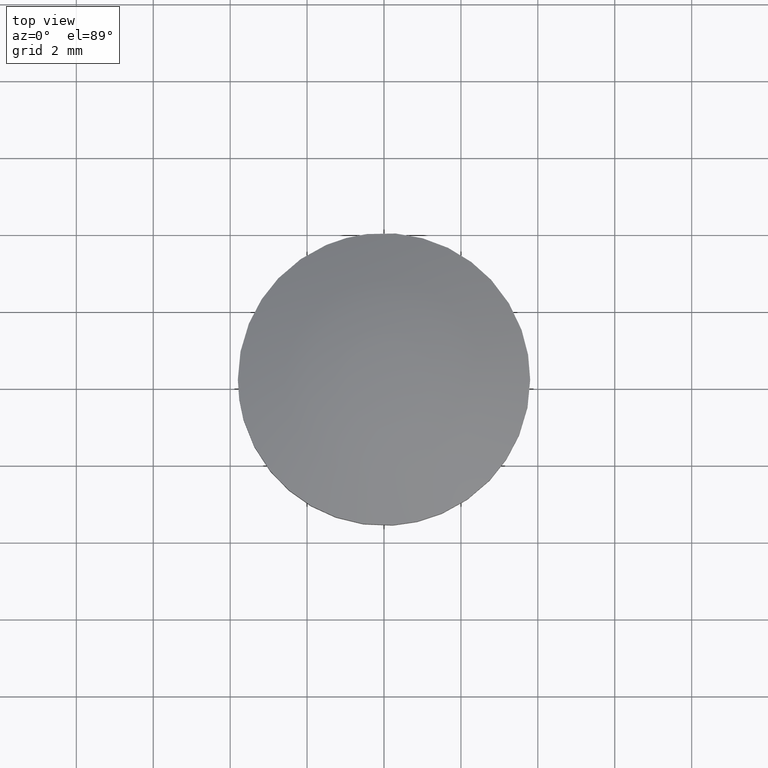
[diagram: clean part render]
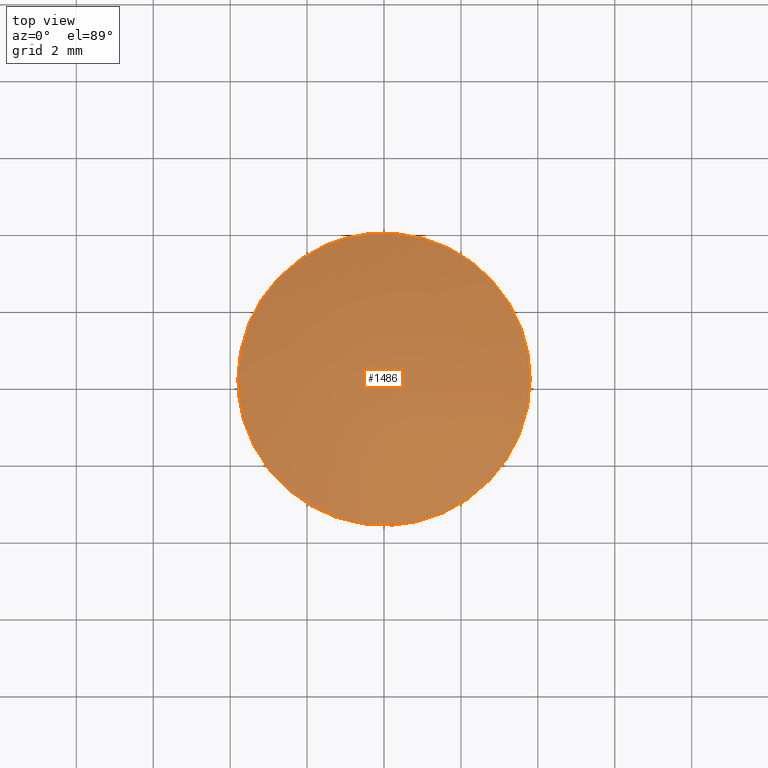
[diagram: same view with one face highlighted and labeled with its STEP entity id]
A machine part, top view. The second image highlights one B-rep face of the part: STEP entity #1486.
In plain terms, the highlighted face is a freeform B-spline surface patch.
Its self-contained STEP definition (entity closure, byte-faithful):
#66=CARTESIAN_POINT('',(-0.448526636085245,3.773436610930404,2.000000000000039));
#67=VERTEX_POINT('',#66);
#68=CARTESIAN_POINT('',(3.800000000000000,0.0,2.000000000000100));
#69=VERTEX_POINT('',#68);
#70=CARTESIAN_POINT('',(-0.448526636085245,3.773436610930405,2.000000000000039));
#71=CARTESIAN_POINT('',(-0.225049908606141,3.800000000000000,2.000000000000100));
#72=CARTESIAN_POINT('',(0.0,3.800000000000000,2.000000000000100));
#73=CARTESIAN_POINT('',(3.800000000000000,3.800000000000000,2.000000000000100));
#74=CARTESIAN_POINT('',(3.800000000000000,0.0,2.000000000000100));
#82=(BOUNDED_CURVE()B_SPLINE_CURVE(2,(#70,#71,#72,#73,#74),.UNSPECIFIED.,.F.,.U.)B_SPLINE_CURVE_WITH_KNOTS((3,2,3),(0.229562628284241,0.250000000000000,0.500000000000000),.UNSPECIFIED.)CURVE()GEOMETRIC_REPRESENTATION_ITEM()RATIONAL_B_SPLINE_CURVE((0.956027057540893,0.976056129656337,1.0,0.707106781186547,1.0))REPRESENTATION_ITEM(''));
#83=EDGE_CURVE('',#67,#69,#82,.T.);
#85=CARTESIAN_POINT('',(0.231979627528073,-3.792912528966175,2.000000000000092));
#86=VERTEX_POINT('',#85);
#87=CARTESIAN_POINT('',(3.800000000000000,0.0,2.000000000000100));
#88=CARTESIAN_POINT('',(3.800000000000001,-3.574687607962647,2.000000000000102));
#89=CARTESIAN_POINT('',(0.231979627528073,-3.792912528966174,2.000000000000092));
#97=(BOUNDED_CURVE()B_SPLINE_CURVE(2,(#87,#88,#89),.UNSPECIFIED.,.F.,.U.)B_SPLINE_CURVE_WITH_KNOTS((3,3),(0.500000000000000,0.739333181635997),.UNSPECIFIED.)CURVE()GEOMETRIC_REPRESENTATION_ITEM()RATIONAL_B_SPLINE_CURVE((1.0,0.719603736247073,0.976072511876820))REPRESENTATION_ITEM(''));
#98=EDGE_CURVE('',#69,#86,#97,.T.);
#165=CARTESIAN_POINT('',(-3.800000000000000,0.0,2.000000000000100));
#166=VERTEX_POINT('',#165);
#167=CARTESIAN_POINT('',(-3.800000000000000,0.0,2.000000000000100));
#168=CARTESIAN_POINT('',(-3.800000000000000,3.375066311165575,2.000000000000100));
#169=CARTESIAN_POINT('',(-0.448526636085245,3.773436610930405,2.000000000000039));
#177=(BOUNDED_CURVE()B_SPLINE_CURVE(2,(#167,#168,#169),.UNSPECIFIED.,.F.,.U.)B_SPLINE_CURVE_WITH_KNOTS((3,3),(0.0,0.229562628284241),.UNSPECIFIED.)CURVE()GEOMETRIC_REPRESENTATION_ITEM()RATIONAL_B_SPLINE_CURVE((1.0,0.731050651530211,0.956027057540893))REPRESENTATION_ITEM(''));
#178=EDGE_CURVE('',#166,#67,#177,.T.);
#212=CARTESIAN_POINT('',(0.231979627528073,-3.792912528966174,2.000000000000092));
#213=CARTESIAN_POINT('',(0.116098082421484,-3.799999999999999,2.000000000000100));
#214=CARTESIAN_POINT('',(0.0,-3.800000000000000,2.000000000000100));
#215=CARTESIAN_POINT('',(-3.800000000000000,-3.800000000000000,2.000000000000100));
#216=CARTESIAN_POINT('',(-3.800000000000000,0.0,2.000000000000100));
#224=(BOUNDED_CURVE()B_SPLINE_CURVE(2,(#212,#213,#214,#215,#216),.UNSPECIFIED.,.F.,.U.)B_SPLINE_CURVE_WITH_KNOTS((3,2,3),(0.739333181635997,0.750000000000000,1.0),.UNSPECIFIED.)CURVE()GEOMETRIC_REPRESENTATION_ITEM()RATIONAL_B_SPLINE_CURVE((0.976072511876820,0.987503044939475,1.0,0.707106781186547,1.0))REPRESENTATION_ITEM(''));
#225=EDGE_CURVE('',#86,#166,#224,.T.);
#1456=CARTESIAN_POINT('',(-3.942129058007659,-3.942042156540033,0.974378074952866));
#1457=CARTESIAN_POINT('',(-2.071372943402327,-4.142654562879875,1.840756798576968));
#1458=CARTESIAN_POINT('',(2.071372530861622,-4.142654562879875,1.840756798576968));
#1459=CARTESIAN_POINT('',(3.942128348922768,-3.942042232579455,0.974378403342009));
#1460=CARTESIAN_POINT('',(-4.142736591891744,-2.071322634085933,1.840716657802976));
#1461=CARTESIAN_POINT('',(-2.182433109047671,-2.182384998841898,2.800000000000097));
#1462=CARTESIAN_POINT('',(2.182432674387898,-2.182384998841898,2.800000000000097));
#1463=CARTESIAN_POINT('',(4.142735850789359,-2.071322676073603,1.840717020464728));
#1464=CARTESIAN_POINT('',(-4.142736591891744,2.071334119460065,1.840716657802976));
#1465=CARTESIAN_POINT('',(-2.182433109047671,2.182397100050951,2.800000000000097));
#1466=CARTESIAN_POINT('',(2.182432674387898,2.182397100050951,2.800000000000097));
#1467=CARTESIAN_POINT('',(4.142735850789359,2.071334161447968,1.840717020464728));
#1468=CARTESIAN_POINT('',(-3.942126941016133,3.942061897998095,0.974368932567223));
#1469=CARTESIAN_POINT('',(-2.071371774430552,4.142675195774709,1.840746701993543));
#1470=CARTESIAN_POINT('',(2.071371361890078,4.142675195774709,1.840746701993543));
#1471=CARTESIAN_POINT('',(3.942126231931582,3.942061974037857,0.974369260956013));
#1479=(BOUNDED_SURFACE()B_SPLINE_SURFACE(2,2,((#1456,#1460,#1464,#1468),(#1457,#1461,#1465,#1469),(#1458,#1462,#1466,#1470),(#1459,#1463,#1467,#1471)),.UNSPECIFIED.,.F.,.F.,.U.)B_SPLINE_SURFACE_WITH_KNOTS((3,1,3),(3,1,3),(1.423219962990284,5.587101061576314,9.750981330871582),(1.423311752825975,5.587101061576314,9.750913458317518),.UNSPECIFIED.)GEOMETRIC_REPRESENTATION_ITEM()RATIONAL_B_SPLINE_SURFACE(((1.107235748466676,1.053619056214763,1.053619056214763,1.107236343071754),(1.053616692251914,1.0,1.0,1.053617286856992),(1.053616692251914,1.0,1.0,1.053617286856992),(1.107235727108821,1.053619034856908,1.053619034856908,1.107236321713899)))REPRESENTATION_ITEM('')SURFACE());
#1480=ORIENTED_EDGE('',*,*,#225,.F.);
#1481=ORIENTED_EDGE('',*,*,#98,.F.);
#1482=ORIENTED_EDGE('',*,*,#83,.F.);
#1483=ORIENTED_EDGE('',*,*,#178,.F.);
#1484=EDGE_LOOP('',(#1480,#1481,#1482,#1483));
#1485=FACE_OUTER_BOUND('',#1484,.T.);
#1486=ADVANCED_FACE('',(#1485),#1479,.T.);